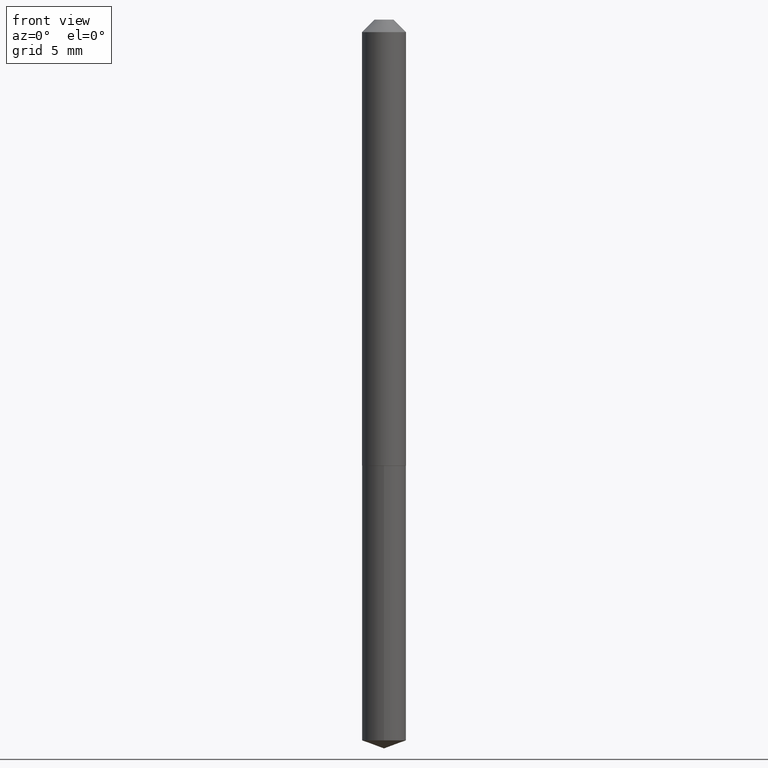
[diagram: clean part render]
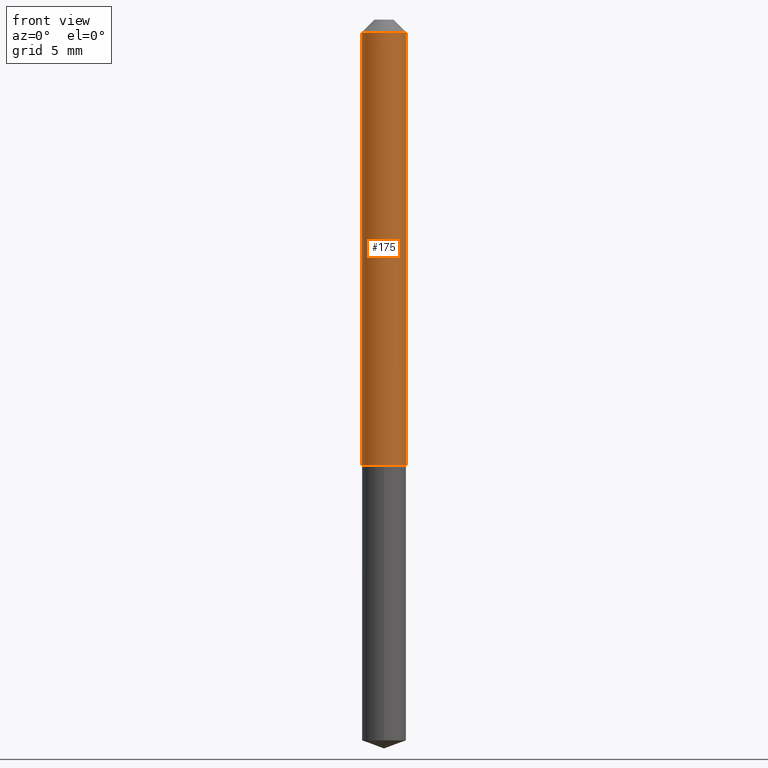
[diagram: same view with one face highlighted and labeled with its STEP entity id]
A machine part, front view. The second image highlights one B-rep face of the part: STEP entity #175.
In plain terms, the highlighted cylindrical surface (edge-blend (fillet) strip) has radius 1.3894 mm, axis along (-0, 0, 1).
Its self-contained STEP definition (entity closure, byte-faithful):
#9 = VERTEX_POINT ( 'NONE', #244 ) ;
#12 = DIRECTION ( 'NONE',  ( 1.000000000000000000, -6.982962677686269866E-15, 0.000000000000000000 ) ) ;
#22 = VECTOR ( 'NONE', #57, 39.37007874015748143 ) ;
#34 = CARTESIAN_POINT ( 'NONE',  ( 7.642090019328602662E-31, -1.091087918388490267E-16, -0.03125000000000020817 ) ) ;
#37 = EDGE_LOOP ( 'NONE', ( #121, #288, #152, #115 ) ) ;
#50 = VERTEX_POINT ( 'NONE', #366 ) ;
#57 = DIRECTION ( 'NONE',  ( -2.445468806185136877E-29, 3.491481338843145188E-15, 1.000000000000000000 ) ) ;
#67 = DIRECTION ( 'NONE',  ( -2.445468806185136597E-29, 3.491481338843145583E-15, 1.000000000000000000 ) ) ;
#73 = AXIS2_PLACEMENT_3D ( 'NONE', #95, #360, #12 ) ;
#83 = DIRECTION ( 'NONE',  ( 1.000000000000000000, -6.982962677686266711E-15, 4.876176775795936353E-29 ) ) ;
#85 = EDGE_CURVE ( 'NONE', #50, #346, #249, .T. ) ;
#91 = LINE ( 'NONE', #128, #192 ) ;
#95 = CARTESIAN_POINT ( 'NONE',  ( 2.711780359178698087E-29, -3.871703656643164443E-15, -1.108899999999999997 ) ) ;
#100 = FACE_OUTER_BOUND ( 'NONE', #37, .T. ) ;
#101 = EDGE_CURVE ( 'NONE', #50, #332, #91, .T. ) ;
#115 = ORIENTED_EDGE ( 'NONE', *, *, #369, .F. ) ;
#116 = AXIS2_PLACEMENT_3D ( 'NONE', #34, #67, #181 ) ;
#121 = ORIENTED_EDGE ( 'NONE', *, *, #101, .F. ) ;
#128 = CARTESIAN_POINT ( 'NONE',  ( -0.05470000000000006801, 3.886668764607752849E-16, -2.690657494369436511E-30 ) ) ;
#152 = ORIENTED_EDGE ( 'NONE', *, *, #301, .T. ) ;
#159 = DIRECTION ( 'NONE',  ( -2.445468806185136877E-29, 3.491481338843145188E-15, 1.000000000000000000 ) ) ;
#175 = ADVANCED_FACE ( 'NONE', ( #100 ), #227, .T. ) ;
#176 = CARTESIAN_POINT ( 'NONE',  ( -0.05470000000000000556, -1.601739347780230402E-15, -0.03125000000000020817 ) ) ;
#181 = DIRECTION ( 'NONE',  ( 1.000000000000000000, -6.982962677686266711E-15, 0.000000000000000000 ) ) ;
#192 = VECTOR ( 'NONE', #159, 39.37007874015748143 ) ;
#194 = CARTESIAN_POINT ( 'NONE',  ( 0.000000000000000000, 0.000000000000000000, 0.000000000000000000 ) ) ;
#227 = CYLINDRICAL_SURFACE ( 'NONE', #267, 0.05470000000000006801 ) ;
#240 = CIRCLE ( 'NONE', #116, 0.05470000000000000556 ) ;
#244 = CARTESIAN_POINT ( 'NONE',  ( 0.05470000000000000556, -4.910768503082878866E-16, -0.03125000000000020817 ) ) ;
#249 = CIRCLE ( 'NONE', #73, 0.05470000000000013046 ) ;
#267 = AXIS2_PLACEMENT_3D ( 'NONE', #194, #312, #83 ) ;
#288 = ORIENTED_EDGE ( 'NONE', *, *, #85, .T. ) ;
#301 = EDGE_CURVE ( 'NONE', #346, #9, #327, .T. ) ;
#312 = DIRECTION ( 'NONE',  ( -2.445468806185136597E-29, 3.491481338843145583E-15, 1.000000000000000000 ) ) ;
#327 = LINE ( 'NONE', #386, #22 ) ;
#329 = CARTESIAN_POINT ( 'NONE',  ( 0.05470000000000013046, -4.253671715112603623E-15, -1.108899999999999997 ) ) ;
#332 = VERTEX_POINT ( 'NONE', #176 ) ;
#346 = VERTEX_POINT ( 'NONE', #329 ) ;
#360 = DIRECTION ( 'NONE',  ( -2.445468806185136597E-29, 3.491481338843145583E-15, 1.000000000000000000 ) ) ;
#366 = CARTESIAN_POINT ( 'NONE',  ( -0.05470000000000013046, -3.483036780182388665E-15, -1.108899999999999997 ) ) ;
#369 = EDGE_CURVE ( 'NONE', #332, #9, #240, .T. ) ;
#386 = CARTESIAN_POINT ( 'NONE',  ( 0.05470000000000006801, -3.819680584694392790E-16, 2.667268696360380458E-30 ) ) ;